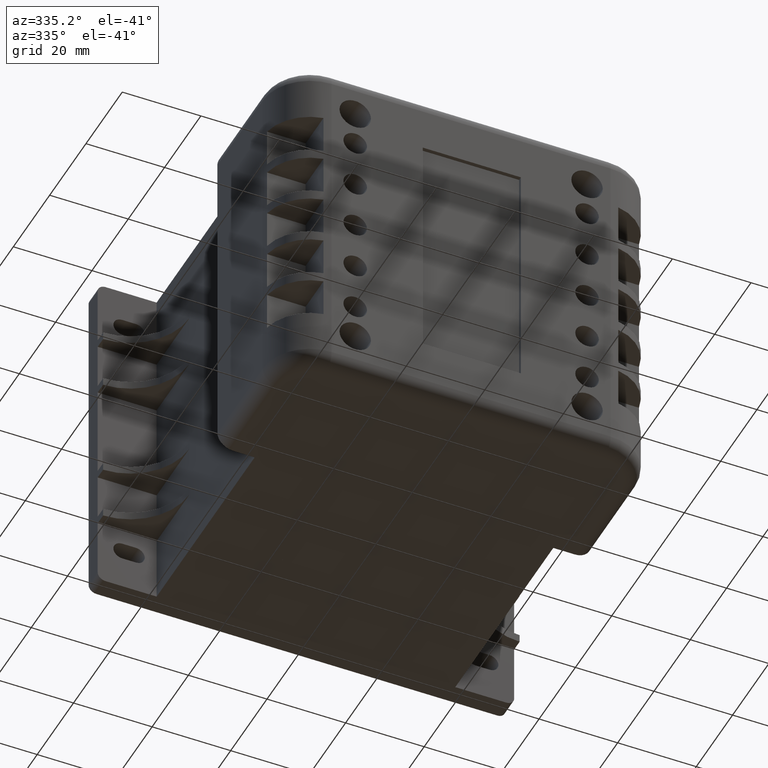
[diagram: clean part render]
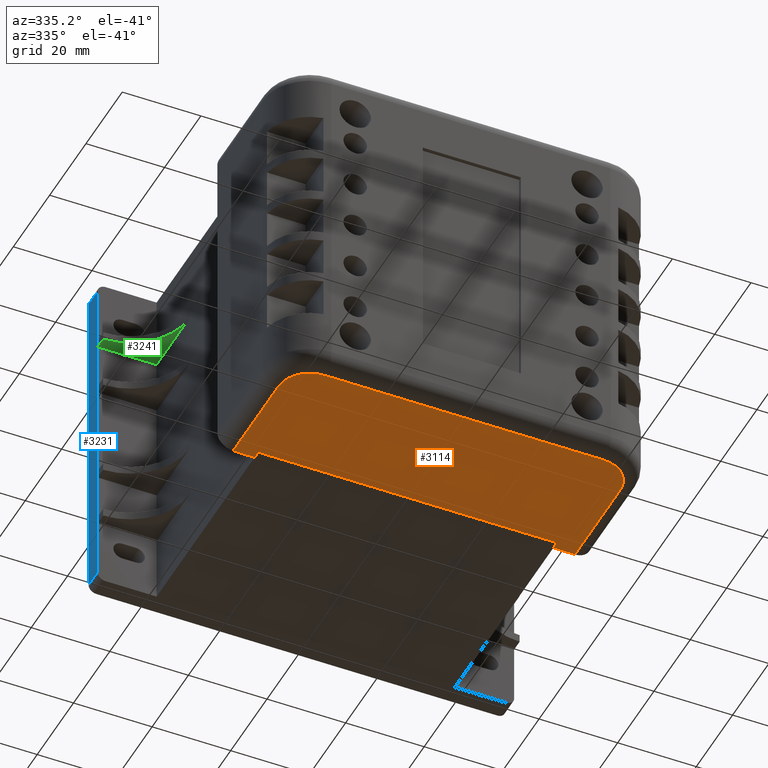
[diagram: same view with three faces highlighted in distinct colors, each labeled with its STEP entity id]
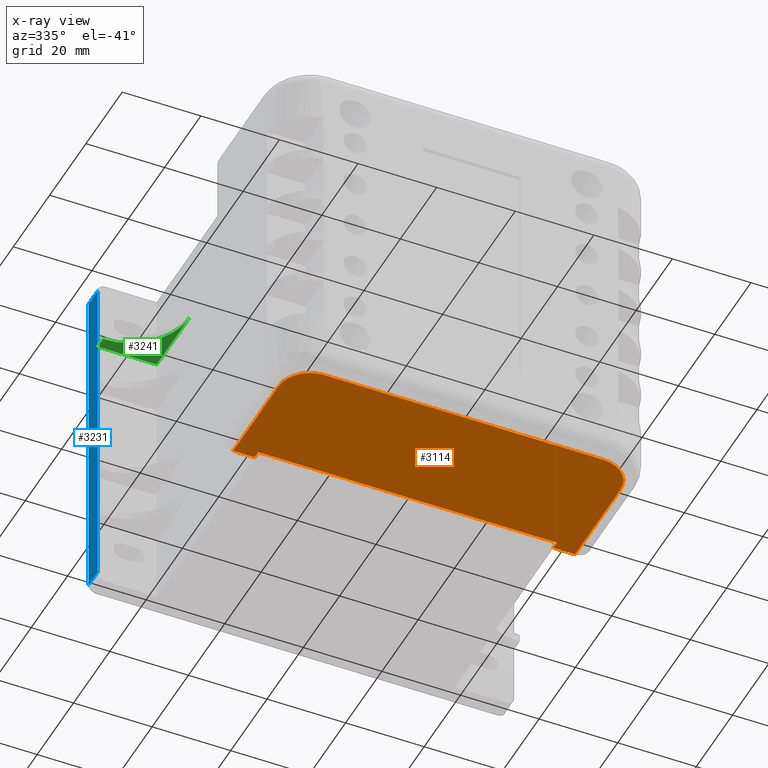
[diagram: x-ray of the same camera — body ghosted, the three highlighted faces saturated]
A machine part, auxiliary view with three faces highlighted in distinct colors.
The next image is the same camera in x-ray (body ghosted, the three faces saturated) — at least one of them is partly hidden behind the body in this view.
Their STEP definitions:

[orange] entity #3114 — the highlighted planar face has unit normal (0, 0, -1).
#73=CIRCLE('',#3418,8.);
#74=CIRCLE('',#3419,8.);
#245=FACE_OUTER_BOUND('',#435,.T.);
#435=EDGE_LOOP('',(#2006,#2007,#2008,#2009,#2010,#2011,#2012,#2013,#2014,
#2015));
#667=LINE('',#4666,#971);
#673=LINE('',#4678,#977);
#675=LINE('',#4681,#979);
#678=LINE('',#4691,#982);
#679=LINE('',#4694,#983);
#682=LINE('',#4704,#986);
#683=LINE('',#4708,#987);
#684=LINE('',#4711,#988);
#971=VECTOR('',#3751,10.);
#977=VECTOR('',#3759,10.);
#979=VECTOR('',#3763,10.);
#982=VECTOR('',#3772,10.);
#983=VECTOR('',#3775,10.);
#986=VECTOR('',#3784,10.);
#987=VECTOR('',#3787,10.);
#988=VECTOR('',#3790,10.);
#1266=VERTEX_POINT('',#4662);
#1268=VERTEX_POINT('',#4665);
#1271=VERTEX_POINT('',#4672);
#1273=VERTEX_POINT('',#4676);
#1277=VERTEX_POINT('',#4689);
#1278=VERTEX_POINT('',#4693);
#1282=VERTEX_POINT('',#4703);
#1283=VERTEX_POINT('',#4705);
#1284=VERTEX_POINT('',#4707);
#1285=VERTEX_POINT('',#4709);
#1547=EDGE_CURVE('',#1268,#1266,#667,.T.);
#1553=EDGE_CURVE('',#1271,#1273,#673,.T.);
#1555=EDGE_CURVE('',#1273,#1268,#675,.T.);
#1560=EDGE_CURVE('',#1266,#1277,#678,.T.);
#1561=EDGE_CURVE('',#1278,#1271,#679,.T.);
#1566=EDGE_CURVE('',#1282,#1277,#682,.T.);
#1567=EDGE_CURVE('',#1283,#1282,#73,.T.);
#1568=EDGE_CURVE('',#1284,#1283,#683,.T.);
#1569=EDGE_CURVE('',#1285,#1284,#74,.T.);
#1570=EDGE_CURVE('',#1278,#1285,#684,.T.);
#2006=ORIENTED_EDGE('',*,*,#1553,.T.);
#2007=ORIENTED_EDGE('',*,*,#1555,.T.);
#2008=ORIENTED_EDGE('',*,*,#1547,.T.);
#2009=ORIENTED_EDGE('',*,*,#1560,.T.);
#2010=ORIENTED_EDGE('',*,*,#1566,.F.);
#2011=ORIENTED_EDGE('',*,*,#1567,.F.);
#2012=ORIENTED_EDGE('',*,*,#1568,.F.);
#2013=ORIENTED_EDGE('',*,*,#1569,.F.);
#2014=ORIENTED_EDGE('',*,*,#1570,.F.);
#2015=ORIENTED_EDGE('',*,*,#1561,.T.);
#2773=PLANE('',#3417);
#3114=ADVANCED_FACE('',(#245),#2773,.T.);
#3417=AXIS2_PLACEMENT_3D('',#4702,#3782,#3783);
#3418=AXIS2_PLACEMENT_3D('',#4706,#3785,#3786);
#3419=AXIS2_PLACEMENT_3D('',#4710,#3788,#3789);
#3751=DIRECTION('',(0.,-1.,0.));
#3759=DIRECTION('',(0.,1.,0.));
#3763=DIRECTION('',(-1.,0.,0.));
#3772=DIRECTION('',(-1.,0.,0.));
#3775=DIRECTION('',(-1.,0.,0.));
#3782=DIRECTION('center_axis',(0.,0.,-1.));
#3783=DIRECTION('ref_axis',(-1.,0.,0.));
#3784=DIRECTION('',(0.,-1.,0.));
#3785=DIRECTION('center_axis',(0.,0.,1.));
#3786=DIRECTION('ref_axis',(-0.707106781186549,0.707106781186546,0.));
#3787=DIRECTION('',(-1.,0.,0.));
#3788=DIRECTION('center_axis',(0.,0.,1.));
#3789=DIRECTION('ref_axis',(0.707106781186548,0.707106781186548,0.));
#3790=DIRECTION('',(0.,1.,0.));
#4662=CARTESIAN_POINT('',(-85.5,0.,0.));
#4665=CARTESIAN_POINT('',(-85.5,2.,0.));
#4666=CARTESIAN_POINT('',(-85.5,0.,0.));
#4672=CARTESIAN_POINT('',(-9.49999999999998,0.,-2.40333860588523E-15));
#4676=CARTESIAN_POINT('',(-9.49999999999998,2.,-2.40333860588523E-15));
#4678=CARTESIAN_POINT('',(-9.49999999999998,0.,0.));
#4681=CARTESIAN_POINT('',(-23.75,2.,0.));
#4689=CARTESIAN_POINT('',(-91.,0.,0.));
#4691=CARTESIAN_POINT('',(0.,0.,0.));
#4693=CARTESIAN_POINT('',(-4.,0.,0.));
#4694=CARTESIAN_POINT('',(0.,0.,0.));
#4702=CARTESIAN_POINT('Origin',(0.,0.,0.));
#4703=CARTESIAN_POINT('',(-91.,25.,0.));
#4704=CARTESIAN_POINT('',(-91.,0.,0.));
#4705=CARTESIAN_POINT('',(-83.,33.,0.));
#4706=CARTESIAN_POINT('Origin',(-83.,25.,0.));
#4707=CARTESIAN_POINT('',(-12.,33.,0.));
#4708=CARTESIAN_POINT('',(-23.75,33.,0.));
#4709=CARTESIAN_POINT('',(-4.,25.,0.));
#4710=CARTESIAN_POINT('Origin',(-12.,25.,0.));
#4711=CARTESIAN_POINT('',(-4.,0.,0.));

[blue] entity #3231 — the highlighted planar face has unit normal (-1, 0, -0).
#362=FACE_OUTER_BOUND('',#580,.T.);
#580=EDGE_LOOP('',(#2500,#2501,#2502,#2503));
#817=LINE('',#5132,#1121);
#855=LINE('',#5244,#1159);
#856=LINE('',#5247,#1160);
#857=LINE('',#5248,#1161);
#1121=VECTOR('',#4245,10.);
#1159=VECTOR('',#4357,10.);
#1160=VECTOR('',#4360,10.);
#1161=VECTOR('',#4361,10.);
#1411=VERTEX_POINT('',#5129);
#1412=VERTEX_POINT('',#5131);
#1449=VERTEX_POINT('',#5242);
#1450=VERTEX_POINT('',#5246);
#1766=EDGE_CURVE('',#1411,#1412,#817,.T.);
#1822=EDGE_CURVE('',#1449,#1412,#855,.T.);
#1823=EDGE_CURVE('',#1450,#1449,#856,.T.);
#1824=EDGE_CURVE('',#1450,#1411,#857,.T.);
#2500=ORIENTED_EDGE('',*,*,#1823,.T.);
#2501=ORIENTED_EDGE('',*,*,#1822,.T.);
#2502=ORIENTED_EDGE('',*,*,#1766,.F.);
#2503=ORIENTED_EDGE('',*,*,#1824,.F.);
#2855=PLANE('',#3618);
#3231=ADVANCED_FACE('',(#362),#2855,.T.);
#3618=AXIS2_PLACEMENT_3D('',#5245,#4358,#4359);
#4245=DIRECTION('',(-4.51834951882331E-16,0.,-1.));
#4357=DIRECTION('',(0.,1.,0.));
#4358=DIRECTION('center_axis',(1.,0.,-4.51834951882331E-16));
#4359=DIRECTION('ref_axis',(-4.51834951882331E-16,0.,-1.));
#4360=DIRECTION('',(-4.51834951882331E-16,0.,-1.));
#4361=DIRECTION('',(0.,1.,0.));
#5129=CARTESIAN_POINT('',(3.5527136788005E-14,5.,88.));
#5131=CARTESIAN_POINT('',(0.,5.,1.99999999999999));
#5132=CARTESIAN_POINT('',(3.99680288865056E-14,5.,88.));
#5242=CARTESIAN_POINT('',(1.11022302462516E-15,0.,1.99999999999999));
#5244=CARTESIAN_POINT('',(1.11022302462516E-15,0.,1.99999999999999));
#5245=CARTESIAN_POINT('Origin',(3.99680288865056E-14,0.,88.));
#5246=CARTESIAN_POINT('',(3.99680288865056E-14,0.,88.));
#5247=CARTESIAN_POINT('',(3.99680288865056E-14,0.,88.));
#5248=CARTESIAN_POINT('',(3.99680288865056E-14,0.,88.));

[green] entity #3241 — the highlighted planar face has unit normal (0, 0, -1).
#162=CIRCLE('',#3633,15.);
#372=FACE_OUTER_BOUND('',#596,.T.);
#596=EDGE_LOOP('',(#2574,#2575,#2576,#2577));
#871=LINE('',#5293,#1175);
#872=LINE('',#5295,#1176);
#873=LINE('',#5296,#1177);
#1175=VECTOR('',#4409,10.);
#1176=VECTOR('',#4410,10.);
#1177=VECTOR('',#4411,10.);
#1460=VERTEX_POINT('',#5280);
#1461=VERTEX_POINT('',#5282);
#1464=VERTEX_POINT('',#5292);
#1465=VERTEX_POINT('',#5294);
#1840=EDGE_CURVE('',#1460,#1461,#162,.T.);
#1845=EDGE_CURVE('',#1464,#1460,#871,.T.);
#1846=EDGE_CURVE('',#1465,#1464,#872,.T.);
#1847=EDGE_CURVE('',#1465,#1461,#873,.T.);
#2574=ORIENTED_EDGE('',*,*,#1840,.F.);
#2575=ORIENTED_EDGE('',*,*,#1845,.F.);
#2576=ORIENTED_EDGE('',*,*,#1846,.F.);
#2577=ORIENTED_EDGE('',*,*,#1847,.T.);
#2861=PLANE('',#3635);
#3241=ADVANCED_FACE('',(#372),#2861,.T.);
#3633=AXIS2_PLACEMENT_3D('',#5283,#4399,#4400);
#3635=AXIS2_PLACEMENT_3D('',#5291,#4407,#4408);
#4399=DIRECTION('center_axis',(-5.9211894646675E-16,-1.2335811384724E-16,
-1.));
#4400=DIRECTION('ref_axis',(0.,-1.,0.));
#4407=DIRECTION('center_axis',(-5.9211894646675E-16,-1.2335811384724E-16,
-1.));
#4408=DIRECTION('ref_axis',(-6.08688970077941E-32,1.,-1.2335811384724E-16));
#4409=DIRECTION('',(-6.08688970077941E-32,1.,-1.2335811384724E-16));
#4410=DIRECTION('',(1.,0.,-5.9211894646675E-16));
#4411=DIRECTION('',(-6.08688970077941E-32,1.,-1.2335811384724E-16));
#5280=CARTESIAN_POINT('',(8.88178419700125E-15,8.00000000000001,71.));
#5282=CARTESIAN_POINT('',(-15.,23.,71.));
#5283=CARTESIAN_POINT('Origin',(8.88178419700125E-15,23.,71.));
#5291=CARTESIAN_POINT('Origin',(-15.,5.,71.));
#5292=CARTESIAN_POINT('',(8.88178419700125E-15,5.,71.));
#5293=CARTESIAN_POINT('',(8.88178419700125E-15,5.,71.));
#5294=CARTESIAN_POINT('',(-15.,5.,71.));
#5295=CARTESIAN_POINT('',(-15.,5.,71.));
#5296=CARTESIAN_POINT('',(-15.,5.,71.));